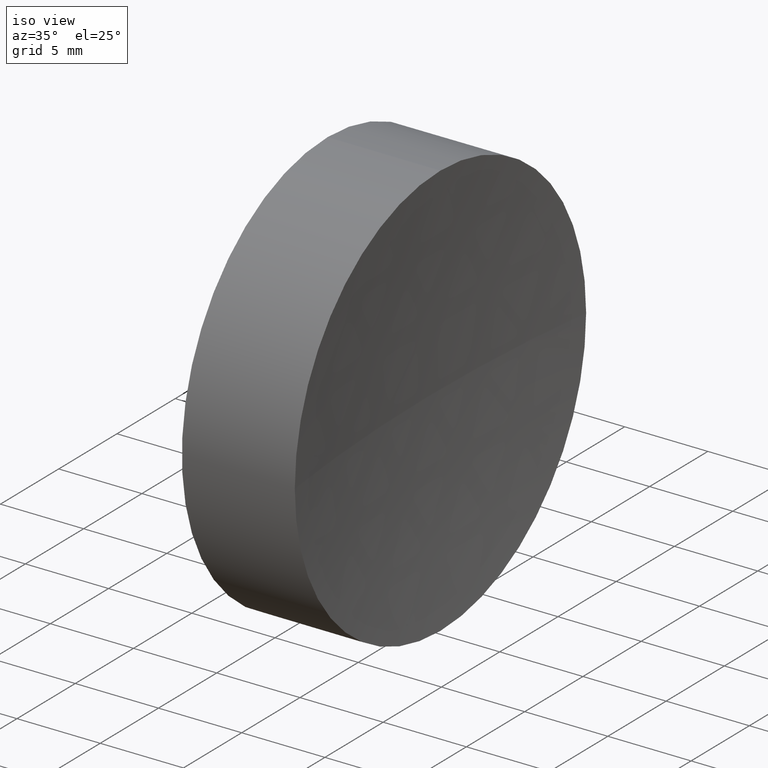
[diagram: clean part render]
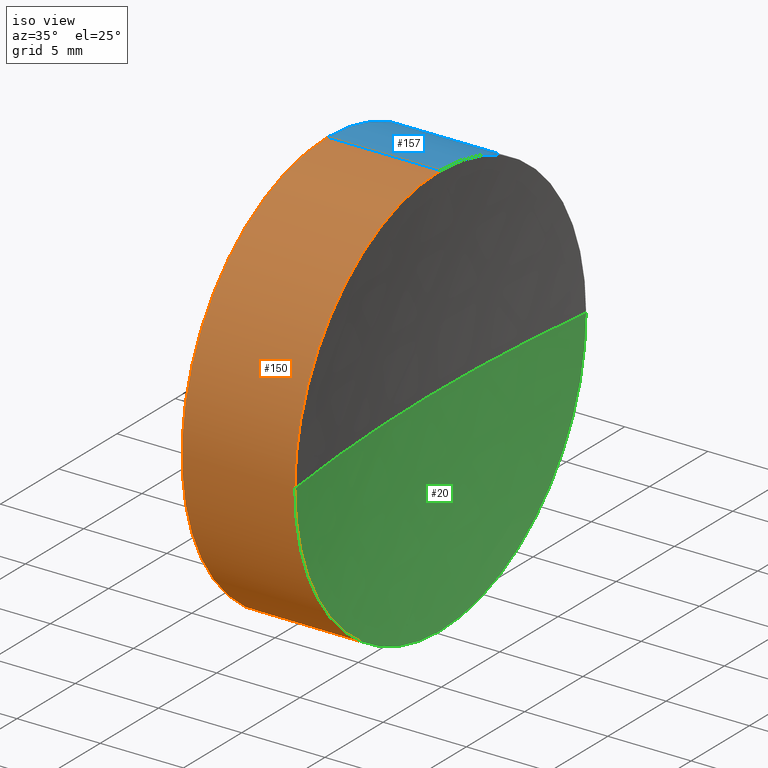
[diagram: same view with three faces highlighted in distinct colors, each labeled with its STEP entity id]
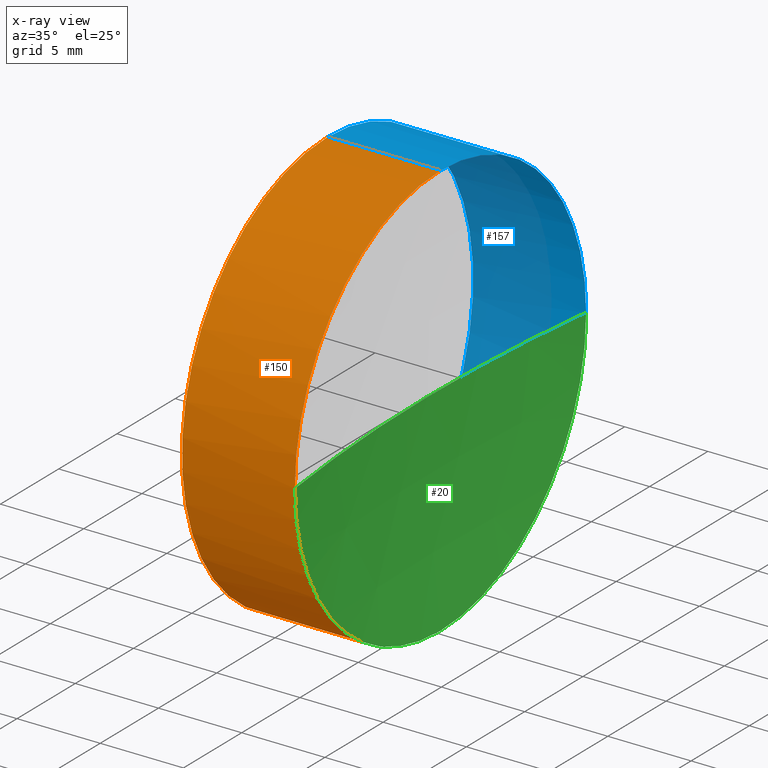
[diagram: x-ray of the same camera — body ghosted, the three highlighted faces saturated]
A machine part, iso view with three faces highlighted in distinct colors.
The next image is the same camera in x-ray (body ghosted, the three faces saturated) — at least one of them is partly hidden behind the body in this view.
Their STEP definitions:

[orange] entity #150 — the highlighted cylindrical surface (partial cylindrical patch) has radius 12.5 mm, axis along (-1, -0, -0).
#4 = VERTEX_POINT ( 'NONE', #110 ) ;
#6 = EDGE_CURVE ( 'NONE', #30, #79, #61, .T. ) ;
#11 = AXIS2_PLACEMENT_3D ( 'NONE', #135, #138, #119 ) ;
#16 = CIRCLE ( 'NONE', #53, 12.50000000000002500 ) ;
#18 = ORIENTED_EDGE ( 'NONE', *, *, #6, .T. ) ;
#25 = CARTESIAN_POINT ( 'NONE',  ( 121.8769810645712300, 69.37802112337243400, 0.0000000000000000000 ) ) ;
#26 = DIRECTION ( 'NONE',  ( 0.0000000000000000000, 0.0000000000000000000, 1.000000000000000000 ) ) ;
#30 = VERTEX_POINT ( 'NONE', #137 ) ;
#31 = CARTESIAN_POINT ( 'NONE',  ( 121.8769810645712300, 69.37802112337243400, 12.50000000000002500 ) ) ;
#37 = DIRECTION ( 'NONE',  ( -1.000000000000000000, -0.0000000000000000000, -0.0000000000000000000 ) ) ;
#49 = CARTESIAN_POINT ( 'NONE',  ( 108.9851430021651000, 69.37802112337243400, 0.0000000000000000000 ) ) ;
#50 = CYLINDRICAL_SURFACE ( 'NONE', #98, 12.50000000000001100 ) ;
#53 = AXIS2_PLACEMENT_3D ( 'NONE', #25, #37, #26 ) ;
#58 = LINE ( 'NONE', #126, #144 ) ;
#61 = CIRCLE ( 'NONE', #11, 12.50000000000002500 ) ;
#63 = CARTESIAN_POINT ( 'NONE',  ( 108.9851430021651000, 69.37802112337243400, -12.50000000000001100 ) ) ;
#65 = VERTEX_POINT ( 'NONE', #31 ) ;
#69 = CARTESIAN_POINT ( 'NONE',  ( 115.0926555349195200, 69.37802112337243400, 12.49999999999999600 ) ) ;
#79 = VERTEX_POINT ( 'NONE', #149 ) ;
#84 = ORIENTED_EDGE ( 'NONE', *, *, #134, .T. ) ;
#85 = DIRECTION ( 'NONE',  ( -1.000000000000000000, -0.0000000000000000000, -0.0000000000000000000 ) ) ;
#87 = CARTESIAN_POINT ( 'NONE',  ( 115.0926555349195200, 69.37802112337243400, 0.0000000000000000000 ) ) ;
#89 = AXIS2_PLACEMENT_3D ( 'NONE', #87, #127, #102 ) ;
#92 = LINE ( 'NONE', #63, #121 ) ;
#98 = AXIS2_PLACEMENT_3D ( 'NONE', #49, #85, #160 ) ;
#102 = DIRECTION ( 'NONE',  ( 0.0000000000000000000, 0.0000000000000000000, 1.000000000000000000 ) ) ;
#108 = FACE_OUTER_BOUND ( 'NONE', #180, .T. ) ;
#110 = CARTESIAN_POINT ( 'NONE',  ( 115.0926555349195200, 69.37802112337243400, -12.49999999999999600 ) ) ;
#112 = DIRECTION ( 'NONE',  ( -1.000000000000000000, -0.0000000000000000000, -0.0000000000000000000 ) ) ;
#115 = ORIENTED_EDGE ( 'NONE', *, *, #185, .T. ) ;
#116 = EDGE_CURVE ( 'NONE', #30, #4, #92, .T. ) ;
#119 = DIRECTION ( 'NONE',  ( 0.0000000000000000000, 0.0000000000000000000, 1.000000000000000000 ) ) ;
#121 = VECTOR ( 'NONE', #112, 1000.000000000000000 ) ;
#122 = ORIENTED_EDGE ( 'NONE', *, *, #167, .F. ) ;
#126 = CARTESIAN_POINT ( 'NONE',  ( 108.9851430021651000, 69.37802112337243400, 12.50000000000001100 ) ) ;
#127 = DIRECTION ( 'NONE',  ( -1.000000000000000000, -0.0000000000000000000, -0.0000000000000000000 ) ) ;
#134 = EDGE_CURVE ( 'NONE', #79, #65, #16, .T. ) ;
#135 = CARTESIAN_POINT ( 'NONE',  ( 121.8769810645712300, 69.37802112337243400, 0.0000000000000000000 ) ) ;
#137 = CARTESIAN_POINT ( 'NONE',  ( 121.8769810645712300, 69.37802112337243400, -12.50000000000002500 ) ) ;
#138 = DIRECTION ( 'NONE',  ( -1.000000000000000000, -0.0000000000000000000, -0.0000000000000000000 ) ) ;
#143 = DIRECTION ( 'NONE',  ( -1.000000000000000000, -0.0000000000000000000, -0.0000000000000000000 ) ) ;
#144 = VECTOR ( 'NONE', #143, 1000.000000000000000 ) ;
#146 = VERTEX_POINT ( 'NONE', #69 ) ;
#149 = CARTESIAN_POINT ( 'NONE',  ( 121.8769810645712300, 56.87802112337242700, 0.0000000000000000000 ) ) ;
#150 = ADVANCED_FACE ( 'NONE', ( #108 ), #50, .T. ) ;
#160 = DIRECTION ( 'NONE',  ( 0.0000000000000000000, 0.0000000000000000000, 1.000000000000000000 ) ) ;
#163 = ORIENTED_EDGE ( 'NONE', *, *, #116, .F. ) ;
#167 = EDGE_CURVE ( 'NONE', #4, #146, #182, .T. ) ;
#180 = EDGE_LOOP ( 'NONE', ( #163, #18, #84, #115, #122 ) ) ;
#182 = CIRCLE ( 'NONE', #89, 12.49999999999999600 ) ;
#185 = EDGE_CURVE ( 'NONE', #65, #146, #58, .T. ) ;

[blue] entity #157 — the highlighted cylindrical surface (partial cylindrical patch) has radius 12.5 mm, axis along (-1, -0, -0).
#4 = VERTEX_POINT ( 'NONE', #110 ) ;
#8 = FACE_OUTER_BOUND ( 'NONE', #21, .T. ) ;
#21 = EDGE_LOOP ( 'NONE', ( #109, #136, #56, #165, #113 ) ) ;
#22 = CYLINDRICAL_SURFACE ( 'NONE', #57, 12.50000000000001100 ) ;
#27 = CARTESIAN_POINT ( 'NONE',  ( 121.8769810645712300, 69.37802112337243400, 0.0000000000000000000 ) ) ;
#30 = VERTEX_POINT ( 'NONE', #137 ) ;
#31 = CARTESIAN_POINT ( 'NONE',  ( 121.8769810645712300, 69.37802112337243400, 12.50000000000002500 ) ) ;
#45 = EDGE_CURVE ( 'NONE', #146, #4, #132, .T. ) ;
#46 = CIRCLE ( 'NONE', #142, 12.50000000000002500 ) ;
#56 = ORIENTED_EDGE ( 'NONE', *, *, #45, .F. ) ;
#57 = AXIS2_PLACEMENT_3D ( 'NONE', #158, #83, #86 ) ;
#58 = LINE ( 'NONE', #126, #144 ) ;
#59 = EDGE_CURVE ( 'NONE', #124, #30, #129, .T. ) ;
#62 = AXIS2_PLACEMENT_3D ( 'NONE', #120, #151, #152 ) ;
#63 = CARTESIAN_POINT ( 'NONE',  ( 108.9851430021651000, 69.37802112337243400, -12.50000000000001100 ) ) ;
#65 = VERTEX_POINT ( 'NONE', #31 ) ;
#69 = CARTESIAN_POINT ( 'NONE',  ( 115.0926555349195200, 69.37802112337243400, 12.49999999999999600 ) ) ;
#72 = DIRECTION ( 'NONE',  ( 0.0000000000000000000, 0.0000000000000000000, 1.000000000000000000 ) ) ;
#73 = AXIS2_PLACEMENT_3D ( 'NONE', #99, #156, #154 ) ;
#83 = DIRECTION ( 'NONE',  ( -1.000000000000000000, -0.0000000000000000000, -0.0000000000000000000 ) ) ;
#86 = DIRECTION ( 'NONE',  ( 0.0000000000000000000, 0.0000000000000000000, 1.000000000000000000 ) ) ;
#92 = LINE ( 'NONE', #63, #121 ) ;
#99 = CARTESIAN_POINT ( 'NONE',  ( 121.8769810645712300, 69.37802112337243400, 0.0000000000000000000 ) ) ;
#109 = ORIENTED_EDGE ( 'NONE', *, *, #59, .T. ) ;
#110 = CARTESIAN_POINT ( 'NONE',  ( 115.0926555349195200, 69.37802112337243400, -12.49999999999999600 ) ) ;
#112 = DIRECTION ( 'NONE',  ( -1.000000000000000000, -0.0000000000000000000, -0.0000000000000000000 ) ) ;
#113 = ORIENTED_EDGE ( 'NONE', *, *, #174, .T. ) ;
#116 = EDGE_CURVE ( 'NONE', #30, #4, #92, .T. ) ;
#120 = CARTESIAN_POINT ( 'NONE',  ( 115.0926555349195200, 69.37802112337243400, 0.0000000000000000000 ) ) ;
#121 = VECTOR ( 'NONE', #112, 1000.000000000000000 ) ;
#124 = VERTEX_POINT ( 'NONE', #178 ) ;
#126 = CARTESIAN_POINT ( 'NONE',  ( 108.9851430021651000, 69.37802112337243400, 12.50000000000001100 ) ) ;
#129 = CIRCLE ( 'NONE', #73, 12.50000000000002500 ) ;
#132 = CIRCLE ( 'NONE', #62, 12.49999999999999600 ) ;
#136 = ORIENTED_EDGE ( 'NONE', *, *, #116, .T. ) ;
#137 = CARTESIAN_POINT ( 'NONE',  ( 121.8769810645712300, 69.37802112337243400, -12.50000000000002500 ) ) ;
#142 = AXIS2_PLACEMENT_3D ( 'NONE', #27, #184, #72 ) ;
#143 = DIRECTION ( 'NONE',  ( -1.000000000000000000, -0.0000000000000000000, -0.0000000000000000000 ) ) ;
#144 = VECTOR ( 'NONE', #143, 1000.000000000000000 ) ;
#146 = VERTEX_POINT ( 'NONE', #69 ) ;
#151 = DIRECTION ( 'NONE',  ( -1.000000000000000000, -0.0000000000000000000, -0.0000000000000000000 ) ) ;
#152 = DIRECTION ( 'NONE',  ( 0.0000000000000000000, 0.0000000000000000000, 1.000000000000000000 ) ) ;
#154 = DIRECTION ( 'NONE',  ( 0.0000000000000000000, 0.0000000000000000000, 1.000000000000000000 ) ) ;
#156 = DIRECTION ( 'NONE',  ( -1.000000000000000000, -0.0000000000000000000, -0.0000000000000000000 ) ) ;
#157 = ADVANCED_FACE ( 'NONE', ( #8 ), #22, .T. ) ;
#158 = CARTESIAN_POINT ( 'NONE',  ( 108.9851430021651000, 69.37802112337243400, 0.0000000000000000000 ) ) ;
#165 = ORIENTED_EDGE ( 'NONE', *, *, #185, .F. ) ;
#174 = EDGE_CURVE ( 'NONE', #65, #124, #46, .T. ) ;
#178 = CARTESIAN_POINT ( 'NONE',  ( 121.8769810645712300, 81.87802112337244900, 1.530808498934192500E-015 ) ) ;
#184 = DIRECTION ( 'NONE',  ( -1.000000000000000000, -0.0000000000000000000, -0.0000000000000000000 ) ) ;
#185 = EDGE_CURVE ( 'NONE', #65, #146, #58, .T. ) ;

[green] entity #20 — the highlighted spherical surface has radius 100 mm.
#1 = DIRECTION ( 'NONE',  ( 0.0000000000000000000, -1.224646799147353200E-016, 1.000000000000000000 ) ) ;
#2 = FACE_OUTER_BOUND ( 'NONE', #155, .T. ) ;
#6 = EDGE_CURVE ( 'NONE', #30, #79, #61, .T. ) ;
#11 = AXIS2_PLACEMENT_3D ( 'NONE', #135, #138, #119 ) ;
#13 = DIRECTION ( 'NONE',  ( 0.0000000000000000000, -1.000000000000000000, 0.0000000000000000000 ) ) ;
#14 = CARTESIAN_POINT ( 'NONE',  ( 221.0926552294933700, 69.37802112337244900, 0.0000000000000000000 ) ) ;
#20 = ADVANCED_FACE ( 'NONE', ( #2 ), #107, .F. ) ;
#24 = CIRCLE ( 'NONE', #162, 99.99999999999998600 ) ;
#30 = VERTEX_POINT ( 'NONE', #137 ) ;
#35 = AXIS2_PLACEMENT_3D ( 'NONE', #161, #128, #52 ) ;
#40 = VERTEX_POINT ( 'NONE', #43 ) ;
#43 = CARTESIAN_POINT ( 'NONE',  ( 121.0926552294933700, 69.37802112337244900, 0.0000000000000000000 ) ) ;
#48 = EDGE_CURVE ( 'NONE', #124, #40, #24, .T. ) ;
#52 = DIRECTION ( 'NONE',  ( -1.000000000000000000, 0.0000000000000000000, 0.0000000000000000000 ) ) ;
#59 = EDGE_CURVE ( 'NONE', #124, #30, #129, .T. ) ;
#61 = CIRCLE ( 'NONE', #11, 12.50000000000002500 ) ;
#73 = AXIS2_PLACEMENT_3D ( 'NONE', #99, #156, #154 ) ;
#75 = ORIENTED_EDGE ( 'NONE', *, *, #48, .T. ) ;
#79 = VERTEX_POINT ( 'NONE', #149 ) ;
#95 = DIRECTION ( 'NONE',  ( 0.0000000000000000000, 0.0000000000000000000, 1.000000000000000000 ) ) ;
#99 = CARTESIAN_POINT ( 'NONE',  ( 121.8769810645712300, 69.37802112337243400, 0.0000000000000000000 ) ) ;
#100 = CIRCLE ( 'NONE', #35, 99.99999999999998600 ) ;
#101 = ORIENTED_EDGE ( 'NONE', *, *, #59, .F. ) ;
#107 = SPHERICAL_SURFACE ( 'NONE', #145, 99.99999999999998600 ) ;
#119 = DIRECTION ( 'NONE',  ( 0.0000000000000000000, 0.0000000000000000000, 1.000000000000000000 ) ) ;
#124 = VERTEX_POINT ( 'NONE', #178 ) ;
#128 = DIRECTION ( 'NONE',  ( 0.0000000000000000000, 0.0000000000000000000, -1.000000000000000000 ) ) ;
#129 = CIRCLE ( 'NONE', #73, 12.50000000000002500 ) ;
#130 = ORIENTED_EDGE ( 'NONE', *, *, #181, .F. ) ;
#135 = CARTESIAN_POINT ( 'NONE',  ( 121.8769810645712300, 69.37802112337243400, 0.0000000000000000000 ) ) ;
#137 = CARTESIAN_POINT ( 'NONE',  ( 121.8769810645712300, 69.37802112337243400, -12.50000000000002500 ) ) ;
#138 = DIRECTION ( 'NONE',  ( -1.000000000000000000, -0.0000000000000000000, -0.0000000000000000000 ) ) ;
#141 = ORIENTED_EDGE ( 'NONE', *, *, #6, .F. ) ;
#145 = AXIS2_PLACEMENT_3D ( 'NONE', #14, #95, #13 ) ;
#149 = CARTESIAN_POINT ( 'NONE',  ( 121.8769810645712300, 56.87802112337242700, 0.0000000000000000000 ) ) ;
#154 = DIRECTION ( 'NONE',  ( 0.0000000000000000000, 0.0000000000000000000, 1.000000000000000000 ) ) ;
#155 = EDGE_LOOP ( 'NONE', ( #101, #75, #130, #141 ) ) ;
#156 = DIRECTION ( 'NONE',  ( -1.000000000000000000, -0.0000000000000000000, -0.0000000000000000000 ) ) ;
#161 = CARTESIAN_POINT ( 'NONE',  ( 221.0926552294933700, 69.37802112337244900, 0.0000000000000000000 ) ) ;
#162 = AXIS2_PLACEMENT_3D ( 'NONE', #166, #1, #168 ) ;
#166 = CARTESIAN_POINT ( 'NONE',  ( 221.0926552294933700, 69.37802112337244900, 0.0000000000000000000 ) ) ;
#168 = DIRECTION ( 'NONE',  ( 0.0000000000000000000, -1.000000000000000000, -1.224646799147353200E-016 ) ) ;
#178 = CARTESIAN_POINT ( 'NONE',  ( 121.8769810645712300, 81.87802112337244900, 1.530808498934192500E-015 ) ) ;
#181 = EDGE_CURVE ( 'NONE', #79, #40, #100, .T. ) ;